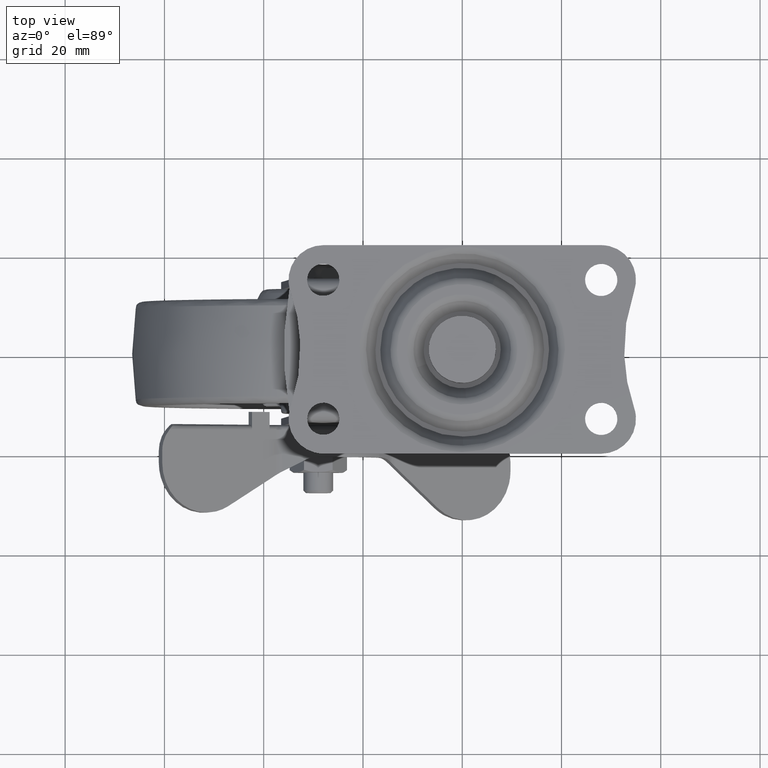
[diagram: clean part render]
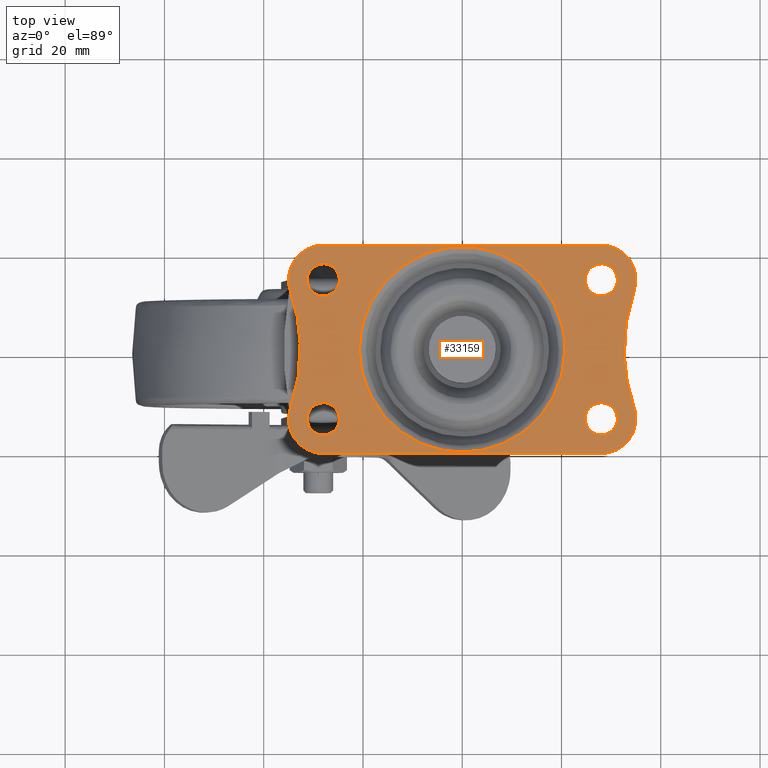
[diagram: same view with one face highlighted and labeled with its STEP entity id]
A machine part, top view. The second image highlights one B-rep face of the part: STEP entity #33159.
In plain terms, the highlighted face is a freeform B-spline surface patch.
Its self-contained STEP definition (entity closure, byte-faithful):
#26462=CARTESIAN_POINT('',(-28.383611239401461,10.772719237964431,1.499999999999946));
#26463=VERTEX_POINT('',#26462);
#26469=CARTESIAN_POINT('',(-24.750000199999999,14.0,1.499999999999946));
#26470=VERTEX_POINT('',#26469);
#26471=CARTESIAN_POINT('',(-28.383611239401464,10.772719237964433,1.499999999999946));
#26472=CARTESIAN_POINT('',(-28.192478377401684,10.750000200000001,1.499999999999947));
#26473=CARTESIAN_POINT('',(-28.0,10.750000200000001,1.499999999999946));
#26474=CARTESIAN_POINT('',(-24.750000200000002,10.750000200000001,1.499999999999946));
#26475=CARTESIAN_POINT('',(-24.750000199999999,14.0,1.499999999999946));
#26483=(BOUNDED_CURVE()B_SPLINE_CURVE(2,(#26471,#26472,#26473,#26474,#26475),.UNSPECIFIED.,.F.,.U.)B_SPLINE_CURVE_WITH_KNOTS((3,2,3),(0.229562473476490,0.250000000000000,0.500000000000000),.UNSPECIFIED.)CURVE()GEOMETRIC_REPRESENTATION_ITEM()RATIONAL_B_SPLINE_CURVE((0.956026754111141,0.976055948287775,1.0,0.707106781186548,1.0))REPRESENTATION_ITEM(''));
#26484=EDGE_CURVE('',#26463,#26470,#26483,.T.);
#26486=CARTESIAN_POINT('',(-27.801592258598099,17.243937895236559,1.499999999999946));
#26487=VERTEX_POINT('',#26486);
#26488=CARTESIAN_POINT('',(-24.750000199999999,14.0,1.499999999999946));
#26489=CARTESIAN_POINT('',(-24.750000199999999,17.057294529069392,1.499999999999947));
#26490=CARTESIAN_POINT('',(-27.801592258598095,17.243937895236563,1.499999999999946));
#26498=(BOUNDED_CURVE()B_SPLINE_CURVE(2,(#26488,#26489,#26490),.UNSPECIFIED.,.F.,.U.)B_SPLINE_CURVE_WITH_KNOTS((3,3),(0.500000000000000,0.739332962228849),.UNSPECIFIED.)CURVE()GEOMETRIC_REPRESENTATION_ITEM()RATIONAL_B_SPLINE_CURVE((1.0,0.719603993298536,0.976072041645084))REPRESENTATION_ITEM(''));
#26499=EDGE_CURVE('',#26470,#26487,#26498,.T.);
#26573=CARTESIAN_POINT('',(-31.249999800000001,14.0,1.499999999999946));
#26574=VERTEX_POINT('',#26573);
#26575=CARTESIAN_POINT('',(-27.801592258598102,17.243937895236563,1.499999999999946));
#26576=CARTESIAN_POINT('',(-27.900703525266472,17.249999800000001,1.499999999999946));
#26577=CARTESIAN_POINT('',(-28.0,17.249999800000001,1.499999999999946));
#26578=CARTESIAN_POINT('',(-31.249999800000008,17.249999800000001,1.499999999999946));
#26579=CARTESIAN_POINT('',(-31.249999800000001,14.0,1.499999999999946));
#26587=(BOUNDED_CURVE()B_SPLINE_CURVE(2,(#26575,#26576,#26577,#26578,#26579),.UNSPECIFIED.,.F.,.U.)B_SPLINE_CURVE_WITH_KNOTS((3,2,3),(0.739332962228849,0.750000000000000,1.0),.UNSPECIFIED.)CURVE()GEOMETRIC_REPRESENTATION_ITEM()RATIONAL_B_SPLINE_CURVE((0.976072041645084,0.987502787888011,1.0,0.707106781186548,1.0))REPRESENTATION_ITEM(''));
#26588=EDGE_CURVE('',#26487,#26574,#26587,.T.);
#26590=CARTESIAN_POINT('',(-31.249999800000001,14.0,1.499999999999946));
#26591=CARTESIAN_POINT('',(-31.249999799999994,11.113432968966428,1.499999999999946));
#26592=CARTESIAN_POINT('',(-28.383611239401464,10.772719237964433,1.499999999999946));
#26600=(BOUNDED_CURVE()B_SPLINE_CURVE(2,(#26590,#26591,#26592),.UNSPECIFIED.,.F.,.U.)B_SPLINE_CURVE_WITH_KNOTS((3,3),(0.0,0.229562473476490),.UNSPECIFIED.)CURVE()GEOMETRIC_REPRESENTATION_ITEM()RATIONAL_B_SPLINE_CURVE((1.0,0.731050832898773,0.956026754111141))REPRESENTATION_ITEM(''));
#26601=EDGE_CURVE('',#26574,#26463,#26600,.T.);
#26648=CARTESIAN_POINT('',(-28.383611239401471,-17.227288762035439,1.499999999999946));
#26649=VERTEX_POINT('',#26648);
#26655=CARTESIAN_POINT('',(-24.750000199999999,-14.000007999999861,1.499999999999946));
#26656=VERTEX_POINT('',#26655);
#26657=CARTESIAN_POINT('',(-28.383611239401471,-17.227288762035435,1.499999999999946));
#26658=CARTESIAN_POINT('',(-28.192478377401692,-17.250007799999867,1.499999999999946));
#26659=CARTESIAN_POINT('',(-28.0,-17.250007799999860,1.499999999999946));
#26660=CARTESIAN_POINT('',(-24.750000200000002,-17.250007799999860,1.499999999999946));
#26661=CARTESIAN_POINT('',(-24.750000199999999,-14.000007999999861,1.499999999999946));
#26669=(BOUNDED_CURVE()B_SPLINE_CURVE(2,(#26657,#26658,#26659,#26660,#26661),.UNSPECIFIED.,.F.,.U.)B_SPLINE_CURVE_WITH_KNOTS((3,2,3),(0.229562473476489,0.250000000000000,0.500000000000000),.UNSPECIFIED.)CURVE()GEOMETRIC_REPRESENTATION_ITEM()RATIONAL_B_SPLINE_CURVE((0.956026754111141,0.976055948287775,1.0,0.707106781186548,1.0))REPRESENTATION_ITEM(''));
#26670=EDGE_CURVE('',#26649,#26656,#26669,.T.);
#26672=CARTESIAN_POINT('',(-27.801592258598099,-10.756070104763300,1.499999999999946));
#26673=VERTEX_POINT('',#26672);
#26674=CARTESIAN_POINT('',(-24.750000199999999,-14.000007999999861,1.499999999999946));
#26675=CARTESIAN_POINT('',(-24.750000199999999,-10.942713470930462,1.499999999999947));
#26676=CARTESIAN_POINT('',(-27.801592258598106,-10.756070104763294,1.499999999999946));
#26684=(BOUNDED_CURVE()B_SPLINE_CURVE(2,(#26674,#26675,#26676),.UNSPECIFIED.,.F.,.U.)B_SPLINE_CURVE_WITH_KNOTS((3,3),(0.500000000000000,0.739332962228849),.UNSPECIFIED.)CURVE()GEOMETRIC_REPRESENTATION_ITEM()RATIONAL_B_SPLINE_CURVE((1.0,0.719603993298536,0.976072041645084))REPRESENTATION_ITEM(''));
#26685=EDGE_CURVE('',#26656,#26673,#26684,.T.);
#26759=CARTESIAN_POINT('',(-31.249999800000001,-14.000007999999861,1.499999999999946));
#26760=VERTEX_POINT('',#26759);
#26761=CARTESIAN_POINT('',(-27.801592258598106,-10.756070104763296,1.499999999999946));
#26762=CARTESIAN_POINT('',(-27.900703525266472,-10.750008199999858,1.499999999999946));
#26763=CARTESIAN_POINT('',(-28.0,-10.750008199999860,1.499999999999946));
#26764=CARTESIAN_POINT('',(-31.249999800000008,-10.750008199999861,1.499999999999946));
#26765=CARTESIAN_POINT('',(-31.249999800000001,-14.000007999999861,1.499999999999946));
#26773=(BOUNDED_CURVE()B_SPLINE_CURVE(2,(#26761,#26762,#26763,#26764,#26765),.UNSPECIFIED.,.F.,.U.)B_SPLINE_CURVE_WITH_KNOTS((3,2,3),(0.739332962228849,0.750000000000000,1.0),.UNSPECIFIED.)CURVE()GEOMETRIC_REPRESENTATION_ITEM()RATIONAL_B_SPLINE_CURVE((0.976072041645086,0.987502787888012,1.0,0.707106781186548,1.0))REPRESENTATION_ITEM(''));
#26774=EDGE_CURVE('',#26673,#26760,#26773,.T.);
#26776=CARTESIAN_POINT('',(-31.249999800000001,-14.000007999999861,1.499999999999946));
#26777=CARTESIAN_POINT('',(-31.249999799999994,-16.886575031033431,1.499999999999946));
#26778=CARTESIAN_POINT('',(-28.383611239401464,-17.227288762035432,1.499999999999946));
#26786=(BOUNDED_CURVE()B_SPLINE_CURVE(2,(#26776,#26777,#26778),.UNSPECIFIED.,.F.,.U.)B_SPLINE_CURVE_WITH_KNOTS((3,3),(0.0,0.229562473476490),.UNSPECIFIED.)CURVE()GEOMETRIC_REPRESENTATION_ITEM()RATIONAL_B_SPLINE_CURVE((1.0,0.731050832898773,0.956026754111141))REPRESENTATION_ITEM(''));
#26787=EDGE_CURVE('',#26760,#26649,#26786,.T.);
#26834=CARTESIAN_POINT('',(27.616388760598529,10.772719237964431,1.499999999999946));
#26835=VERTEX_POINT('',#26834);
#26841=CARTESIAN_POINT('',(31.249999800000001,14.0,1.499999999999946));
#26842=VERTEX_POINT('',#26841);
#26843=CARTESIAN_POINT('',(27.616388760598532,10.772719237964429,1.499999999999946));
#26844=CARTESIAN_POINT('',(27.807521622598316,10.750000200000006,1.499999999999946));
#26845=CARTESIAN_POINT('',(28.0,10.750000200000001,1.499999999999946));
#26846=CARTESIAN_POINT('',(31.249999800000008,10.750000200000001,1.499999999999946));
#26847=CARTESIAN_POINT('',(31.249999800000001,14.0,1.499999999999946));
#26855=(BOUNDED_CURVE()B_SPLINE_CURVE(2,(#26843,#26844,#26845,#26846,#26847),.UNSPECIFIED.,.F.,.U.)B_SPLINE_CURVE_WITH_KNOTS((3,2,3),(0.229562473476489,0.250000000000000,0.500000000000000),.UNSPECIFIED.)CURVE()GEOMETRIC_REPRESENTATION_ITEM()RATIONAL_B_SPLINE_CURVE((0.956026754111140,0.976055948287774,1.0,0.707106781186548,1.0))REPRESENTATION_ITEM(''));
#26856=EDGE_CURVE('',#26835,#26842,#26855,.T.);
#26858=CARTESIAN_POINT('',(28.198407741401901,17.243937895236559,1.499999999999946));
#26859=VERTEX_POINT('',#26858);
#26860=CARTESIAN_POINT('',(31.249999800000001,14.0,1.499999999999946));
#26861=CARTESIAN_POINT('',(31.249999799999998,17.057294529069392,1.499999999999947));
#26862=CARTESIAN_POINT('',(28.198407741401898,17.243937895236563,1.499999999999946));
#26870=(BOUNDED_CURVE()B_SPLINE_CURVE(2,(#26860,#26861,#26862),.UNSPECIFIED.,.F.,.U.)B_SPLINE_CURVE_WITH_KNOTS((3,3),(0.500000000000000,0.739332962228849),.UNSPECIFIED.)CURVE()GEOMETRIC_REPRESENTATION_ITEM()RATIONAL_B_SPLINE_CURVE((1.0,0.719603993298536,0.976072041645084))REPRESENTATION_ITEM(''));
#26871=EDGE_CURVE('',#26842,#26859,#26870,.T.);
#26945=CARTESIAN_POINT('',(24.750000199999999,14.0,1.499999999999946));
#26946=VERTEX_POINT('',#26945);
#26947=CARTESIAN_POINT('',(28.198407741401905,17.243937895236563,1.499999999999946));
#26948=CARTESIAN_POINT('',(28.099296474733539,17.249999800000001,1.499999999999946));
#26949=CARTESIAN_POINT('',(28.0,17.249999800000001,1.499999999999946));
#26950=CARTESIAN_POINT('',(24.750000200000002,17.249999800000001,1.499999999999946));
#26951=CARTESIAN_POINT('',(24.750000199999999,14.0,1.499999999999946));
#26959=(BOUNDED_CURVE()B_SPLINE_CURVE(2,(#26947,#26948,#26949,#26950,#26951),.UNSPECIFIED.,.F.,.U.)B_SPLINE_CURVE_WITH_KNOTS((3,2,3),(0.739332962228849,0.750000000000000,1.0),.UNSPECIFIED.)CURVE()GEOMETRIC_REPRESENTATION_ITEM()RATIONAL_B_SPLINE_CURVE((0.976072041645084,0.987502787888011,1.0,0.707106781186548,1.0))REPRESENTATION_ITEM(''));
#26960=EDGE_CURVE('',#26859,#26946,#26959,.T.);
#26962=CARTESIAN_POINT('',(24.750000199999999,14.0,1.499999999999946));
#26963=CARTESIAN_POINT('',(24.750000199999995,11.113432968966436,1.499999999999945));
#26964=CARTESIAN_POINT('',(27.616388760598536,10.772719237964420,1.499999999999946));
#26972=(BOUNDED_CURVE()B_SPLINE_CURVE(2,(#26962,#26963,#26964),.UNSPECIFIED.,.F.,.U.)B_SPLINE_CURVE_WITH_KNOTS((3,3),(0.0,0.229562473476489),.UNSPECIFIED.)CURVE()GEOMETRIC_REPRESENTATION_ITEM()RATIONAL_B_SPLINE_CURVE((1.0,0.731050832898773,0.956026754111140))REPRESENTATION_ITEM(''));
#26973=EDGE_CURVE('',#26946,#26835,#26972,.T.);
#27020=CARTESIAN_POINT('',(27.616388760598529,-17.227280762035569,1.499999999999946));
#27021=VERTEX_POINT('',#27020);
#27027=CARTESIAN_POINT('',(31.249999800000001,-14.0,1.499999999999946));
#27028=VERTEX_POINT('',#27027);
#27029=CARTESIAN_POINT('',(27.616388760598529,-17.227280762035573,1.499999999999946));
#27030=CARTESIAN_POINT('',(27.807521622598312,-17.249999799999998,1.499999999999946));
#27031=CARTESIAN_POINT('',(28.0,-17.249999800000001,1.499999999999946));
#27032=CARTESIAN_POINT('',(31.249999800000008,-17.249999800000001,1.499999999999946));
#27033=CARTESIAN_POINT('',(31.249999800000001,-14.0,1.499999999999946));
#27041=(BOUNDED_CURVE()B_SPLINE_CURVE(2,(#27029,#27030,#27031,#27032,#27033),.UNSPECIFIED.,.F.,.U.)B_SPLINE_CURVE_WITH_KNOTS((3,2,3),(0.229562473476489,0.250000000000000,0.500000000000000),.UNSPECIFIED.)CURVE()GEOMETRIC_REPRESENTATION_ITEM()RATIONAL_B_SPLINE_CURVE((0.956026754111140,0.976055948287775,1.0,0.707106781186548,1.0))REPRESENTATION_ITEM(''));
#27042=EDGE_CURVE('',#27021,#27028,#27041,.T.);
#27044=CARTESIAN_POINT('',(28.198407741401901,-10.756062104763441,1.499999999999946));
#27045=VERTEX_POINT('',#27044);
#27046=CARTESIAN_POINT('',(31.249999800000001,-14.0,1.499999999999946));
#27047=CARTESIAN_POINT('',(31.249999799999998,-10.942705470930601,1.499999999999947));
#27048=CARTESIAN_POINT('',(28.198407741401898,-10.756062104763441,1.499999999999946));
#27056=(BOUNDED_CURVE()B_SPLINE_CURVE(2,(#27046,#27047,#27048),.UNSPECIFIED.,.F.,.U.)B_SPLINE_CURVE_WITH_KNOTS((3,3),(0.500000000000000,0.739332962228849),.UNSPECIFIED.)CURVE()GEOMETRIC_REPRESENTATION_ITEM()RATIONAL_B_SPLINE_CURVE((1.0,0.719603993298536,0.976072041645084))REPRESENTATION_ITEM(''));
#27057=EDGE_CURVE('',#27028,#27045,#27056,.T.);
#27131=CARTESIAN_POINT('',(24.750000199999999,-14.0,1.499999999999946));
#27132=VERTEX_POINT('',#27131);
#27133=CARTESIAN_POINT('',(28.198407741401901,-10.756062104763439,1.499999999999946));
#27134=CARTESIAN_POINT('',(28.099296474733539,-10.750000200000001,1.499999999999946));
#27135=CARTESIAN_POINT('',(28.0,-10.750000200000001,1.499999999999946));
#27136=CARTESIAN_POINT('',(24.750000200000002,-10.750000200000001,1.499999999999946));
#27137=CARTESIAN_POINT('',(24.750000199999999,-14.0,1.499999999999946));
#27145=(BOUNDED_CURVE()B_SPLINE_CURVE(2,(#27133,#27134,#27135,#27136,#27137),.UNSPECIFIED.,.F.,.U.)B_SPLINE_CURVE_WITH_KNOTS((3,2,3),(0.739332962228849,0.750000000000000,1.0),.UNSPECIFIED.)CURVE()GEOMETRIC_REPRESENTATION_ITEM()RATIONAL_B_SPLINE_CURVE((0.976072041645084,0.987502787888011,1.0,0.707106781186548,1.0))REPRESENTATION_ITEM(''));
#27146=EDGE_CURVE('',#27045,#27132,#27145,.T.);
#27148=CARTESIAN_POINT('',(24.750000199999999,-14.0,1.499999999999946));
#27149=CARTESIAN_POINT('',(24.750000199999995,-16.886567031033561,1.499999999999945));
#27150=CARTESIAN_POINT('',(27.616388760598536,-17.227280762035576,1.499999999999947));
#27158=(BOUNDED_CURVE()B_SPLINE_CURVE(2,(#27148,#27149,#27150),.UNSPECIFIED.,.F.,.U.)B_SPLINE_CURVE_WITH_KNOTS((3,3),(0.0,0.229562473476489),.UNSPECIFIED.)CURVE()GEOMETRIC_REPRESENTATION_ITEM()RATIONAL_B_SPLINE_CURVE((1.0,0.731050832898773,0.956026754111140))REPRESENTATION_ITEM(''));
#27159=EDGE_CURVE('',#27132,#27021,#27158,.T.);
#30363=CARTESIAN_POINT('',(-18.263908652237330,9.743827618323060,1.500000000000000));
#30364=VERTEX_POINT('',#30363);
#30378=CARTESIAN_POINT('',(-20.700544344917301,0.0,1.500000000000000));
#30379=VERTEX_POINT('',#30378);
#30380=CARTESIAN_POINT('',(-20.700544344917301,0.0,1.500000000000000));
#30381=CARTESIAN_POINT('',(-20.700544344917304,5.176578143021528,1.499999999999999));
#30382=CARTESIAN_POINT('',(-18.263908652237330,9.743827618323060,1.500000000000000));
#30390=(BOUNDED_CURVE()B_SPLINE_CURVE(2,(#30380,#30381,#30382),.UNSPECIFIED.,.F.,.U.)B_SPLINE_CURVE_WITH_KNOTS((3,3),(0.0,0.080114533811593),.UNSPECIFIED.)CURVE()GEOMETRIC_REPRESENTATION_ITEM()RATIONAL_B_SPLINE_CURVE((1.0,0.906139985272733,0.872436381132860))REPRESENTATION_ITEM(''));
#30391=EDGE_CURVE('',#30379,#30364,#30390,.T.);
#30393=CARTESIAN_POINT('',(20.700544344917301,0.0,1.500000000000000));
#30394=VERTEX_POINT('',#30393);
#30395=CARTESIAN_POINT('',(20.700544344917301,0.0,1.500000000000000));
#30396=CARTESIAN_POINT('',(20.700544344917297,-20.700544344917297,1.500000000000000));
#30397=CARTESIAN_POINT('',(0.0,-20.700544344917301,1.500000000000000));
#30398=CARTESIAN_POINT('',(-20.700544344917297,-20.700544344917297,1.500000000000000));
#30399=CARTESIAN_POINT('',(-20.700544344917301,0.0,1.500000000000000));
#30407=(BOUNDED_CURVE()B_SPLINE_CURVE(2,(#30395,#30396,#30397,#30398,#30399),.UNSPECIFIED.,.F.,.U.)B_SPLINE_CURVE_WITH_KNOTS((3,2,3),(0.500000000000000,0.750000000000000,1.0),.UNSPECIFIED.)CURVE()GEOMETRIC_REPRESENTATION_ITEM()RATIONAL_B_SPLINE_CURVE((1.0,0.707106781186548,1.0,0.707106781186548,1.0))REPRESENTATION_ITEM(''));
#30408=EDGE_CURVE('',#30394,#30379,#30407,.T.);
#30410=CARTESIAN_POINT('',(7.569829243173591,19.266816582089909,1.500000000000000));
#30411=VERTEX_POINT('',#30410);
#30412=CARTESIAN_POINT('',(7.569829243173591,19.266816582089909,1.500000000000000));
#30413=CARTESIAN_POINT('',(20.700544344917308,14.107828814575672,1.500000000000000));
#30414=CARTESIAN_POINT('',(20.700544344917301,0.0,1.500000000000000));
#30422=(BOUNDED_CURVE()B_SPLINE_CURVE(2,(#30412,#30413,#30414),.UNSPECIFIED.,.F.,.U.)B_SPLINE_CURVE_WITH_KNOTS((3,3),(0.312091868786793,0.500000000000000),.UNSPECIFIED.)CURVE()GEOMETRIC_REPRESENTATION_ITEM()RATIONAL_B_SPLINE_CURVE((0.890644759605234,0.779851930430973,1.0))REPRESENTATION_ITEM(''));
#30423=EDGE_CURVE('',#30411,#30394,#30422,.T.);
#30460=CARTESIAN_POINT('',(-18.263908652237326,9.743827618323060,1.499999999999999));
#30461=CARTESIAN_POINT('',(-12.418480877119247,20.700544344917304,1.500000000000000));
#30462=CARTESIAN_POINT('',(0.0,20.700544344917301,1.500000000000000));
#30463=CARTESIAN_POINT('',(3.920688840123029,20.700544344917301,1.500000000000000));
#30464=CARTESIAN_POINT('',(7.569829243173592,19.266816582089906,1.500000000000000));
#30472=(BOUNDED_CURVE()B_SPLINE_CURVE(2,(#30460,#30461,#30462,#30463,#30464),.UNSPECIFIED.,.F.,.U.)B_SPLINE_CURVE_WITH_KNOTS((3,2,3),(0.080114533811593,0.250000000000000,0.312091868786793),.UNSPECIFIED.)CURVE()GEOMETRIC_REPRESENTATION_ITEM()RATIONAL_B_SPLINE_CURVE((0.872436381132860,0.800966795913815,1.0,0.927254850755575,0.890644759605234))REPRESENTATION_ITEM(''));
#30473=EDGE_CURVE('',#30364,#30411,#30472,.T.);
#32564=CARTESIAN_POINT('',(3.580759339263660,20.999995639421051,1.500000000000000));
#32565=VERTEX_POINT('',#32564);
#32566=CARTESIAN_POINT('',(-3.580766839262380,20.999994360576999,1.500000000000000));
#32567=VERTEX_POINT('',#32566);
#32580=CARTESIAN_POINT('',(-3.580766839262380,20.999994360576999,1.500000000000000));
#32581=CARTESIAN_POINT('',(3.580759339263660,20.999995639421051,1.500000000000000));
#32582=QUASI_UNIFORM_CURVE('',1,(#32580,#32581),.UNSPECIFIED.,.F.,.U.);
#32583=EDGE_CURVE('',#32567,#32565,#32582,.T.);
#32729=CARTESIAN_POINT('',(28.000003909537551,20.999999999999002,1.499999999999946));
#32730=VERTEX_POINT('',#32729);
#32736=CARTESIAN_POINT('',(34.612583487418703,11.703537585346320,1.499999999999946));
#32737=VERTEX_POINT('',#32736);
#32738=CARTESIAN_POINT('',(34.612583487418732,11.703537585346311,1.499999999999946));
#32739=CARTESIAN_POINT('',(35.797259518374247,15.114770928531025,1.499999999999946));
#32740=CARTESIAN_POINT('',(33.704176660777470,18.057384455858429,1.499999999999946));
#32741=CARTESIAN_POINT('',(31.611093803180694,20.999997983185835,1.499999999999946));
#32742=CARTESIAN_POINT('',(28.000003909537551,20.999999999999002,1.499999999999946));
#32750=(BOUNDED_CURVE()B_SPLINE_CURVE(2,(#32738,#32739,#32740,#32741,#32742),.UNSPECIFIED.,.F.,.U.)B_SPLINE_CURVE_WITH_KNOTS((3,2,3),(0.0,0.500000000000000,1.0),.UNSPECIFIED.)CURVE()GEOMETRIC_REPRESENTATION_ITEM()RATIONAL_B_SPLINE_CURVE((1.0,0.888714466505697,1.0,0.888714466505697,1.0))REPRESENTATION_ITEM(''));
#32751=EDGE_CURVE('',#32737,#32730,#32750,.T.);
#32791=CARTESIAN_POINT('',(34.609303948770297,-11.694115936832601,1.499999999999946));
#32792=VERTEX_POINT('',#32791);
#32793=CARTESIAN_POINT('',(34.612583487418703,11.703537585346320,1.499999999999946));
#32794=CARTESIAN_POINT('',(30.527562404083348,0.005283705689020,1.499999999999946));
#32795=CARTESIAN_POINT('',(34.609303948770297,-11.694115936832601,1.499999999999946));
#32803=(BOUNDED_CURVE()B_SPLINE_CURVE(2,(#32793,#32794,#32795),.UNSPECIFIED.,.F.,.U.)CURVE()GEOMETRIC_REPRESENTATION_ITEM()QUASI_UNIFORM_CURVE()RATIONAL_B_SPLINE_CURVE((1.0,0.944140053967858,1.0))REPRESENTATION_ITEM(''));
#32804=EDGE_CURVE('',#32737,#32792,#32803,.T.);
#32846=CARTESIAN_POINT('',(28.0,-21.0,1.499999999999946));
#32847=VERTEX_POINT('',#32846);
#32848=CARTESIAN_POINT('',(28.0,-21.0,1.499999999999946));
#32849=CARTESIAN_POINT('',(31.614249456186542,-21.000000000000004,1.499999999999947));
#32850=CARTESIAN_POINT('',(33.707065289716411,-18.053320340031629,1.499999999999946));
#32851=CARTESIAN_POINT('',(35.799881123246294,-15.106640680063252,1.499999999999947));
#32852=CARTESIAN_POINT('',(34.609303948770290,-11.694115936832601,1.499999999999946));
#32860=(BOUNDED_CURVE()B_SPLINE_CURVE(2,(#32848,#32849,#32850,#32851,#32852),.UNSPECIFIED.,.F.,.U.)B_SPLINE_CURVE_WITH_KNOTS((3,2,3),(0.0,0.500000000000000,1.0),.UNSPECIFIED.)CURVE()GEOMETRIC_REPRESENTATION_ITEM()RATIONAL_B_SPLINE_CURVE((1.0,0.888551001029671,1.0,0.888551001029671,1.0))REPRESENTATION_ITEM(''));
#32861=EDGE_CURVE('',#32847,#32792,#32860,.T.);
#32904=CARTESIAN_POINT('',(-28.000006108652400,-20.999999999997350,1.499999999999946));
#32905=VERTEX_POINT('',#32904);
#32911=CARTESIAN_POINT('',(-34.609300374364203,-11.694120049033801,1.499999999999946));
#32912=VERTEX_POINT('',#32911);
#32913=CARTESIAN_POINT('',(-34.609300374364203,-11.694120049033801,1.499999999999946));
#32914=CARTESIAN_POINT('',(-35.799876129449011,-15.106642331600746,1.499999999999946));
#32915=CARTESIAN_POINT('',(-33.707064042312901,-18.053319731614579,1.499999999999946));
#32916=CARTESIAN_POINT('',(-31.614251955176787,-20.999997131628430,1.499999999999946));
#32917=CARTESIAN_POINT('',(-28.000006108652400,-20.999999999997350,1.499999999999946));
#32925=(BOUNDED_CURVE()B_SPLINE_CURVE(2,(#32913,#32914,#32915,#32916,#32917),.UNSPECIFIED.,.F.,.U.)B_SPLINE_CURVE_WITH_KNOTS((3,2,3),(0.0,0.500000000000000,1.0),.UNSPECIFIED.)CURVE()GEOMETRIC_REPRESENTATION_ITEM()RATIONAL_B_SPLINE_CURVE((1.0,0.888551145444471,1.0,0.888551145444471,1.0))REPRESENTATION_ITEM(''));
#32926=EDGE_CURVE('',#32912,#32905,#32925,.T.);
#32966=CARTESIAN_POINT('',(-34.611171447356462,11.699465691574160,1.499999999999946));
#32967=VERTEX_POINT('',#32966);
#32968=CARTESIAN_POINT('',(-34.609300374364203,-11.694120049033810,1.499999999999946));
#32969=CARTESIAN_POINT('',(-30.528361173387893,0.002999299034800,1.499999999999946));
#32970=CARTESIAN_POINT('',(-34.611171447356540,11.699465691574130,1.499999999999946));
#32978=(BOUNDED_CURVE()B_SPLINE_CURVE(2,(#32968,#32969,#32970),.UNSPECIFIED.,.F.,.U.)CURVE()GEOMETRIC_REPRESENTATION_ITEM()QUASI_UNIFORM_CURVE()RATIONAL_B_SPLINE_CURVE((1.0,0.944160055577155,1.0))REPRESENTATION_ITEM(''));
#32979=EDGE_CURVE('',#32912,#32967,#32978,.T.);
#33003=CARTESIAN_POINT('',(-27.999998900442598,20.999992180288402,1.499999999999946));
#33004=VERTEX_POINT('',#33003);
#33028=CARTESIAN_POINT('',(-27.999998900442598,20.999992180288402,1.499999999999946));
#33029=CARTESIAN_POINT('',(-31.612451673190836,20.999992347823984,1.499999999999946));
#33030=CARTESIAN_POINT('',(-33.705421232898473,18.055625264375180,1.499999999999946));
#33031=CARTESIAN_POINT('',(-35.798390792606106,15.111258180926388,1.499999999999946));
#33032=CARTESIAN_POINT('',(-34.611171447356462,11.699465691574160,1.499999999999946));
#33040=(BOUNDED_CURVE()B_SPLINE_CURVE(2,(#33028,#33029,#33030,#33031,#33032),.UNSPECIFIED.,.F.,.U.)B_SPLINE_CURVE_WITH_KNOTS((3,2,3),(0.0,0.500000000000000,1.0),.UNSPECIFIED.)CURVE()GEOMETRIC_REPRESENTATION_ITEM()RATIONAL_B_SPLINE_CURVE((1.0,0.888643962049789,1.0,0.888643962049789,1.0))REPRESENTATION_ITEM(''));
#33041=EDGE_CURVE('',#33004,#32967,#33040,.T.);
#33100=CARTESIAN_POINT('',(-38.495357228015330,23.097899918594798,1.500000000000000));
#33101=CARTESIAN_POINT('',(38.495417362868871,23.097899918594798,1.500000000000000));
#33102=CARTESIAN_POINT('',(-38.495357228015330,-23.097901045123589,1.500000000000000));
#33103=CARTESIAN_POINT('',(38.495417362868871,-23.097901045123589,1.500000000000000));
#33104=B_SPLINE_SURFACE_WITH_KNOTS('',1,1,((#33100,#33102),(#33101,#33103)),.UNSPECIFIED.,.F.,.F.,.U.,(2,2),(2,2),(0.0,76.990774590884200),(0.0,46.195800963718391),.UNSPECIFIED.);
#33105=CARTESIAN_POINT('',(-28.000006108652400,-20.999999999997350,1.499999999999946));
#33106=CARTESIAN_POINT('',(28.0,-21.0,1.499999999999946));
#33107=QUASI_UNIFORM_CURVE('',1,(#33105,#33106),.UNSPECIFIED.,.F.,.U.);
#33108=EDGE_CURVE('',#32905,#32847,#33107,.T.);
#33109=ORIENTED_EDGE('',*,*,#33108,.T.);
#33110=ORIENTED_EDGE('',*,*,#32861,.T.);
#33111=ORIENTED_EDGE('',*,*,#32804,.F.);
#33112=ORIENTED_EDGE('',*,*,#32751,.T.);
#33113=CARTESIAN_POINT('',(28.000003909537551,20.999999999999002,1.499999999999946));
#33114=CARTESIAN_POINT('',(3.580759339263660,20.999995639421051,1.500000000000000));
#33115=QUASI_UNIFORM_CURVE('',1,(#33113,#33114),.UNSPECIFIED.,.F.,.U.);
#33116=EDGE_CURVE('',#32730,#32565,#33115,.T.);
#33117=ORIENTED_EDGE('',*,*,#33116,.T.);
#33118=ORIENTED_EDGE('',*,*,#32583,.F.);
#33119=CARTESIAN_POINT('',(-3.580766839262380,20.999994360576999,1.500000000000000));
#33120=CARTESIAN_POINT('',(-27.999998900442598,20.999992180288402,1.499999999999946));
#33121=QUASI_UNIFORM_CURVE('',1,(#33119,#33120),.UNSPECIFIED.,.F.,.U.);
#33122=EDGE_CURVE('',#32567,#33004,#33121,.T.);
#33123=ORIENTED_EDGE('',*,*,#33122,.T.);
#33124=ORIENTED_EDGE('',*,*,#33041,.T.);
#33125=ORIENTED_EDGE('',*,*,#32979,.F.);
#33126=ORIENTED_EDGE('',*,*,#32926,.T.);
#33127=EDGE_LOOP('',(#33109,#33110,#33111,#33112,#33117,#33118,#33123,#33124,#33125,#33126));
#33128=FACE_OUTER_BOUND('',#33127,.T.);
#33129=ORIENTED_EDGE('',*,*,#30408,.T.);
#33130=ORIENTED_EDGE('',*,*,#30391,.T.);
#33131=ORIENTED_EDGE('',*,*,#30473,.T.);
#33132=ORIENTED_EDGE('',*,*,#30423,.T.);
#33133=EDGE_LOOP('',(#33129,#33130,#33131,#33132));
#33134=FACE_BOUND('',#33133,.T.);
#33135=ORIENTED_EDGE('',*,*,#27057,.F.);
#33136=ORIENTED_EDGE('',*,*,#27042,.F.);
#33137=ORIENTED_EDGE('',*,*,#27159,.F.);
#33138=ORIENTED_EDGE('',*,*,#27146,.F.);
#33139=EDGE_LOOP('',(#33135,#33136,#33137,#33138));
#33140=FACE_BOUND('',#33139,.T.);
#33141=ORIENTED_EDGE('',*,*,#26871,.F.);
#33142=ORIENTED_EDGE('',*,*,#26856,.F.);
#33143=ORIENTED_EDGE('',*,*,#26973,.F.);
#33144=ORIENTED_EDGE('',*,*,#26960,.F.);
#33145=EDGE_LOOP('',(#33141,#33142,#33143,#33144));
#33146=FACE_BOUND('',#33145,.T.);
#33147=ORIENTED_EDGE('',*,*,#26685,.F.);
#33148=ORIENTED_EDGE('',*,*,#26670,.F.);
#33149=ORIENTED_EDGE('',*,*,#26787,.F.);
#33150=ORIENTED_EDGE('',*,*,#26774,.F.);
#33151=EDGE_LOOP('',(#33147,#33148,#33149,#33150));
#33152=FACE_BOUND('',#33151,.T.);
#33153=ORIENTED_EDGE('',*,*,#26499,.F.);
#33154=ORIENTED_EDGE('',*,*,#26484,.F.);
#33155=ORIENTED_EDGE('',*,*,#26601,.F.);
#33156=ORIENTED_EDGE('',*,*,#26588,.F.);
#33157=EDGE_LOOP('',(#33153,#33154,#33155,#33156));
#33158=FACE_BOUND('',#33157,.T.);
#33159=ADVANCED_FACE('',(#33128,#33134,#33140,#33146,#33152,#33158),#33104,.F.);